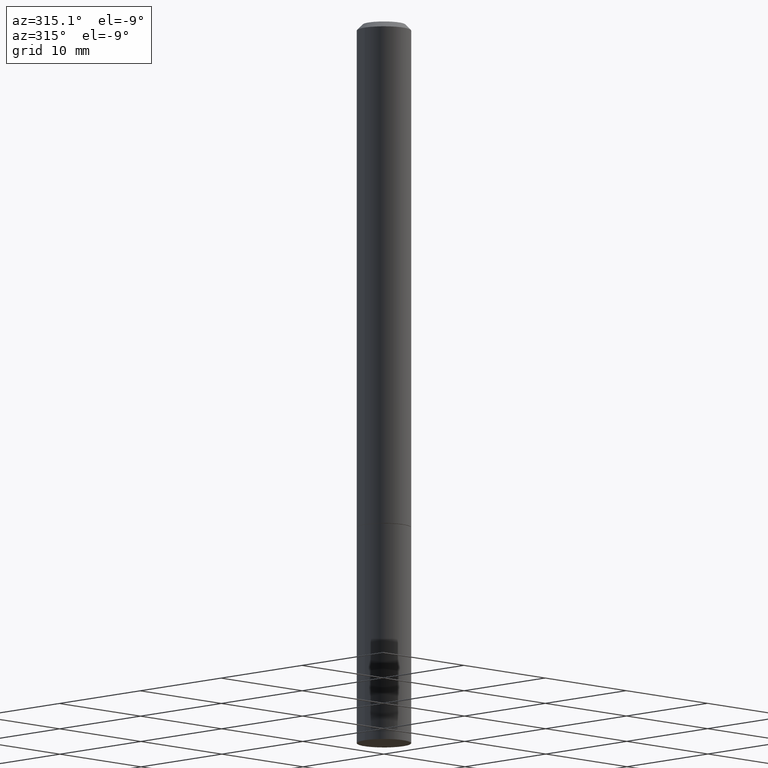
[diagram: clean part render]
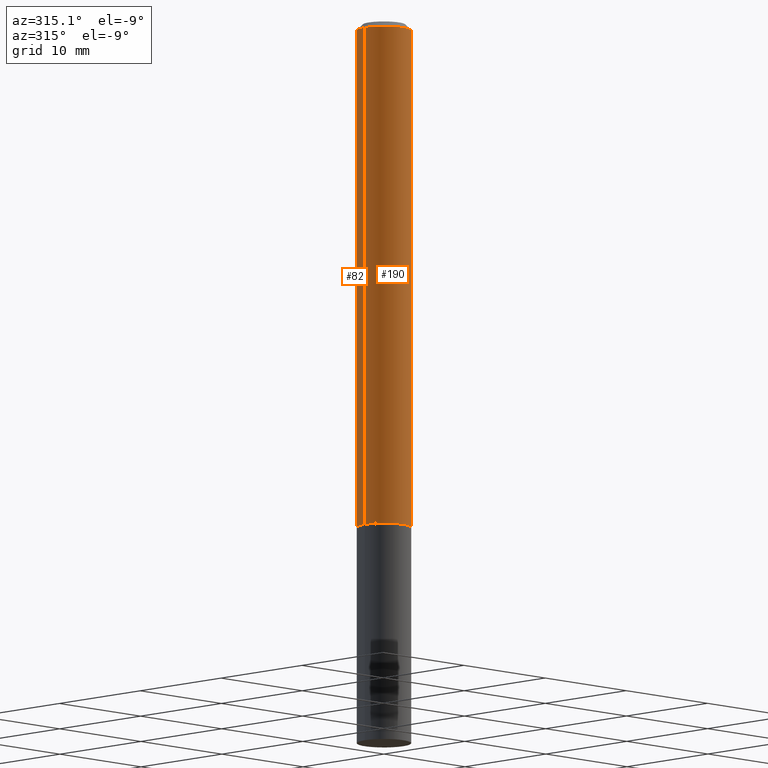
[diagram: same view with one multi-face feature highlighted, each face labeled with its STEP entity id]
A machine part, auxiliary view. The highlighted faces form ONE feature: a constant-radius fillet chain: 2 tangent blend faces with common blend radius 2.3812 mm. The faces share edges in the B-rep.
Their STEP definitions:
[1] entity #190 (Cylinder):
#1 = DIRECTION ( 'NONE',  ( -2.445468806185136597E-29, 3.491481338843145583E-15, 1.000000000000000000 ) ) ;
#7 = EDGE_CURVE ( 'NONE', #52, #260, #253, .T. ) ;
#18 = DIRECTION ( 'NONE',  ( -2.445468806185136597E-29, 3.491481338843145583E-15, 1.000000000000000000 ) ) ;
#19 = CARTESIAN_POINT ( 'NONE',  ( 4.890937612370278413E-31, -6.982962677686297772E-17, -0.02000000000000002123 ) ) ;
#24 = CARTESIAN_POINT ( 'NONE',  ( 0.000000000000000000, 0.000000000000000000, 0.000000000000000000 ) ) ;
#32 = LINE ( 'NONE', #215, #111 ) ;
#47 = ORIENTED_EDGE ( 'NONE', *, *, #307, .T. ) ;
#49 = DIRECTION ( 'NONE',  ( -2.445468806185136877E-29, 3.491481338843145188E-15, 1.000000000000000000 ) ) ;
#52 = VERTEX_POINT ( 'NONE', #342 ) ;
#58 = VERTEX_POINT ( 'NONE', #320 ) ;
#74 = VERTEX_POINT ( 'NONE', #232 ) ;
#77 = LINE ( 'NONE', #173, #209 ) ;
#79 = CIRCLE ( 'NONE', #306, 0.09375000000000001388 ) ;
#80 = CYLINDRICAL_SURFACE ( 'NONE', #174, 0.09374999999999988898 ) ;
#108 = DIRECTION ( 'NONE',  ( 1.000000000000000000, -6.982962677686265133E-15, 4.876176775795935793E-29 ) ) ;
#111 = VECTOR ( 'NONE', #148, 39.37007874015748143 ) ;
#113 = ORIENTED_EDGE ( 'NONE', *, *, #7, .F. ) ;
#146 = FACE_OUTER_BOUND ( 'NONE', #292, .T. ) ;
#148 = DIRECTION ( 'NONE',  ( -2.445468806185136877E-29, 3.491481338843145188E-15, 1.000000000000000000 ) ) ;
#173 = CARTESIAN_POINT ( 'NONE',  ( -0.09374999999999988898, 6.661338147750931354E-16, -4.611501647113968390E-30 ) ) ;
#174 = AXIS2_PLACEMENT_3D ( 'NONE', #24, #386, #108 ) ;
#183 = CARTESIAN_POINT ( 'NONE',  ( 4.277124942017804562E-29, -6.106600861636661664E-15, -1.749000000000000110 ) ) ;
#190 = ADVANCED_FACE ( 'NONE', ( #146 ), #80, .T. ) ;
#193 = ORIENTED_EDGE ( 'NONE', *, *, #322, .T. ) ;
#204 = EDGE_CURVE ( 'NONE', #58, #52, #77, .T. ) ;
#209 = VECTOR ( 'NONE', #49, 39.37007874015748143 ) ;
#215 = CARTESIAN_POINT ( 'NONE',  ( 0.09374999999999988898, -6.546527510330866166E-16, 4.571415727308684201E-30 ) ) ;
#232 = CARTESIAN_POINT ( 'NONE',  ( 0.09375000000000001388, -6.761253612669749168E-15, -1.749000000000000110 ) ) ;
#253 = CIRCLE ( 'NONE', #305, 0.09374999999999975020 ) ;
#260 = VERTEX_POINT ( 'NONE', #329 ) ;
#278 = DIRECTION ( 'NONE',  ( 1.000000000000000000, -6.982962677686261189E-15, 0.000000000000000000 ) ) ;
#287 = ORIENTED_EDGE ( 'NONE', *, *, #204, .F. ) ;
#292 = EDGE_LOOP ( 'NONE', ( #287, #47, #193, #113 ) ) ;
#305 = AXIS2_PLACEMENT_3D ( 'NONE', #19, #18, #313 ) ;
#306 = AXIS2_PLACEMENT_3D ( 'NONE', #183, #1, #278 ) ;
#307 = EDGE_CURVE ( 'NONE', #58, #74, #79, .T. ) ;
#313 = DIRECTION ( 'NONE',  ( 1.000000000000000000, -6.982962677686267499E-15, 0.000000000000000000 ) ) ;
#320 = CARTESIAN_POINT ( 'NONE',  ( -0.09375000000000001388, -2.422081429431664218E-15, -1.749000000000000110 ) ) ;
#322 = EDGE_CURVE ( 'NONE', #74, #260, #32, .T. ) ;
#329 = CARTESIAN_POINT ( 'NONE',  ( 0.09374999999999975020, -7.130013140679423114E-16, -0.02000000000000002123 ) ) ;
#342 = CARTESIAN_POINT ( 'NONE',  ( -0.09374999999999975020, 5.848231242562228254E-16, -0.02000000000000002123 ) ) ;
#386 = DIRECTION ( 'NONE',  ( -2.445468806185136597E-29, 3.491481338843145583E-15, 1.000000000000000000 ) ) ;
[2] entity #82 (Cylinder):
#32 = LINE ( 'NONE', #215, #111 ) ;
#33 = CIRCLE ( 'NONE', #41, 0.09374999999999975020 ) ;
#41 = AXIS2_PLACEMENT_3D ( 'NONE', #246, #217, #333 ) ;
#46 = ORIENTED_EDGE ( 'NONE', *, *, #322, .F. ) ;
#49 = DIRECTION ( 'NONE',  ( -2.445468806185136877E-29, 3.491481338843145188E-15, 1.000000000000000000 ) ) ;
#52 = VERTEX_POINT ( 'NONE', #342 ) ;
#58 = VERTEX_POINT ( 'NONE', #320 ) ;
#74 = VERTEX_POINT ( 'NONE', #232 ) ;
#77 = LINE ( 'NONE', #173, #209 ) ;
#82 = ADVANCED_FACE ( 'NONE', ( #263 ), #223, .T. ) ;
#91 = AXIS2_PLACEMENT_3D ( 'NONE', #286, #352, #189 ) ;
#111 = VECTOR ( 'NONE', #148, 39.37007874015748143 ) ;
#148 = DIRECTION ( 'NONE',  ( -2.445468806185136877E-29, 3.491481338843145188E-15, 1.000000000000000000 ) ) ;
#170 = ORIENTED_EDGE ( 'NONE', *, *, #294, .F. ) ;
#173 = CARTESIAN_POINT ( 'NONE',  ( -0.09374999999999988898, 6.661338147750931354E-16, -4.611501647113968390E-30 ) ) ;
#189 = DIRECTION ( 'NONE',  ( 1.000000000000000000, -6.982962677686265133E-15, 4.876176775795935793E-29 ) ) ;
#201 = EDGE_LOOP ( 'NONE', ( #229, #303, #170, #46 ) ) ;
#204 = EDGE_CURVE ( 'NONE', #58, #52, #77, .T. ) ;
#209 = VECTOR ( 'NONE', #49, 39.37007874015748143 ) ;
#215 = CARTESIAN_POINT ( 'NONE',  ( 0.09374999999999988898, -6.546527510330866166E-16, 4.571415727308684201E-30 ) ) ;
#217 = DIRECTION ( 'NONE',  ( -2.445468806185136597E-29, 3.491481338843145583E-15, 1.000000000000000000 ) ) ;
#223 = CYLINDRICAL_SURFACE ( 'NONE', #91, 0.09374999999999988898 ) ;
#229 = ORIENTED_EDGE ( 'NONE', *, *, #302, .T. ) ;
#232 = CARTESIAN_POINT ( 'NONE',  ( 0.09375000000000001388, -6.761253612669749168E-15, -1.749000000000000110 ) ) ;
#246 = CARTESIAN_POINT ( 'NONE',  ( 4.890937612370278413E-31, -6.982962677686297772E-17, -0.02000000000000002123 ) ) ;
#247 = CARTESIAN_POINT ( 'NONE',  ( 4.277124942017804562E-29, -6.106600861636661664E-15, -1.749000000000000110 ) ) ;
#255 = AXIS2_PLACEMENT_3D ( 'NONE', #247, #365, #304 ) ;
#260 = VERTEX_POINT ( 'NONE', #329 ) ;
#263 = FACE_OUTER_BOUND ( 'NONE', #201, .T. ) ;
#286 = CARTESIAN_POINT ( 'NONE',  ( 0.000000000000000000, 0.000000000000000000, 0.000000000000000000 ) ) ;
#294 = EDGE_CURVE ( 'NONE', #260, #52, #33, .T. ) ;
#302 = EDGE_CURVE ( 'NONE', #74, #58, #364, .T. ) ;
#303 = ORIENTED_EDGE ( 'NONE', *, *, #204, .T. ) ;
#304 = DIRECTION ( 'NONE',  ( 1.000000000000000000, -6.982962677686261189E-15, 0.000000000000000000 ) ) ;
#320 = CARTESIAN_POINT ( 'NONE',  ( -0.09375000000000001388, -2.422081429431664218E-15, -1.749000000000000110 ) ) ;
#322 = EDGE_CURVE ( 'NONE', #74, #260, #32, .T. ) ;
#329 = CARTESIAN_POINT ( 'NONE',  ( 0.09374999999999975020, -7.130013140679423114E-16, -0.02000000000000002123 ) ) ;
#333 = DIRECTION ( 'NONE',  ( 1.000000000000000000, -6.982962677686267499E-15, 0.000000000000000000 ) ) ;
#342 = CARTESIAN_POINT ( 'NONE',  ( -0.09374999999999975020, 5.848231242562228254E-16, -0.02000000000000002123 ) ) ;
#352 = DIRECTION ( 'NONE',  ( -2.445468806185136597E-29, 3.491481338843145583E-15, 1.000000000000000000 ) ) ;
#364 = CIRCLE ( 'NONE', #255, 0.09375000000000001388 ) ;
#365 = DIRECTION ( 'NONE',  ( -2.445468806185136597E-29, 3.491481338843145583E-15, 1.000000000000000000 ) ) ;